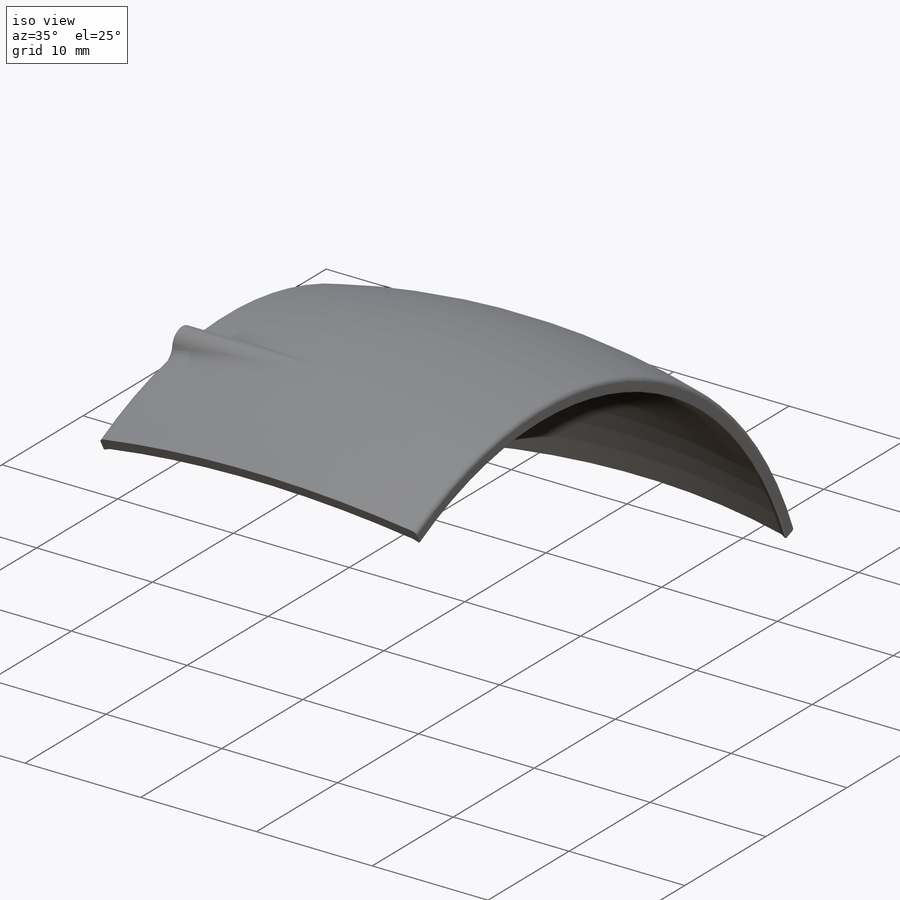
[diagram: iso view]
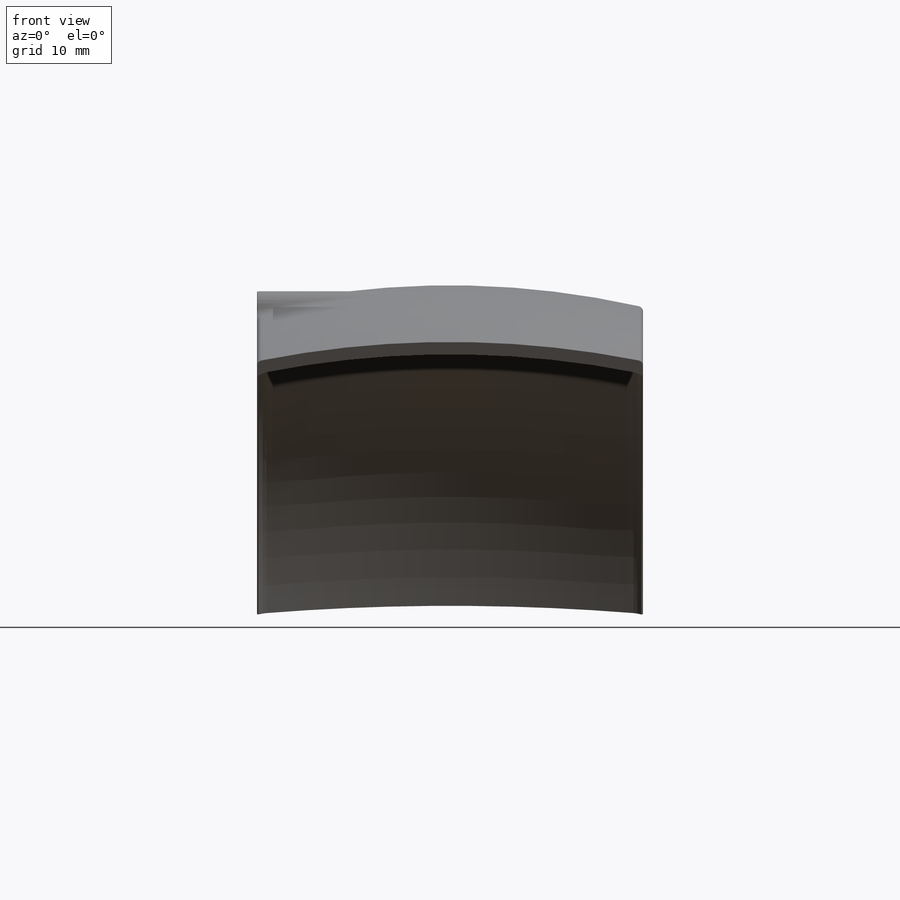
[diagram: front view]
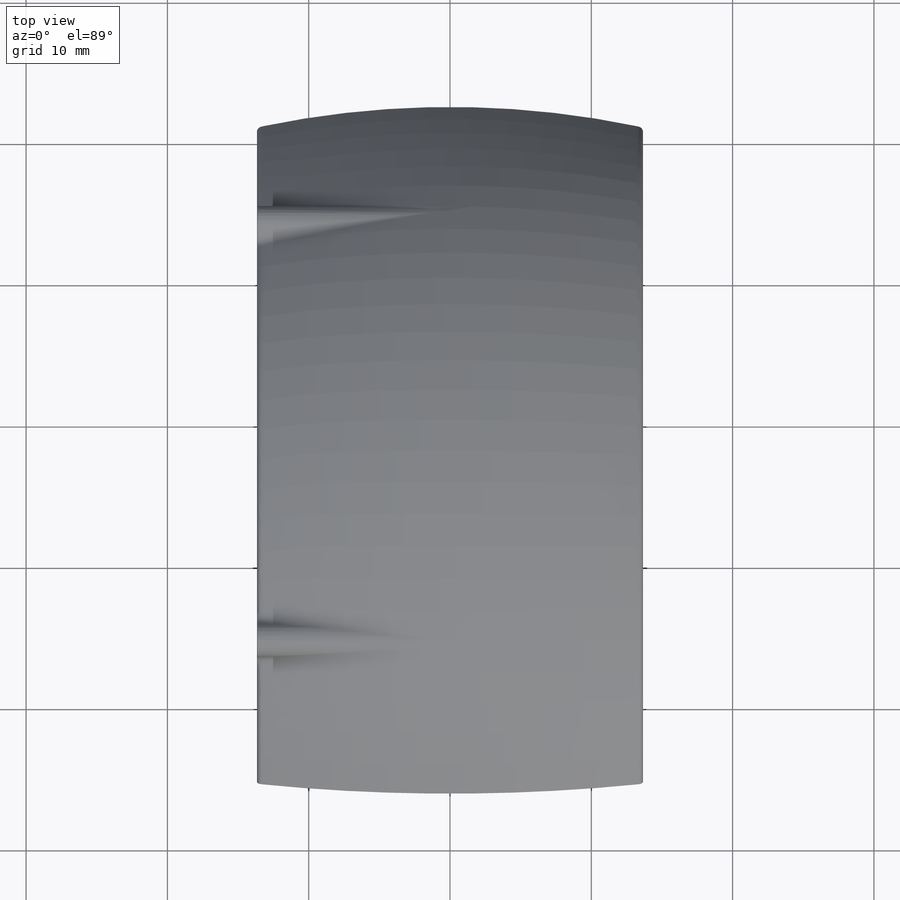
[diagram: top view]
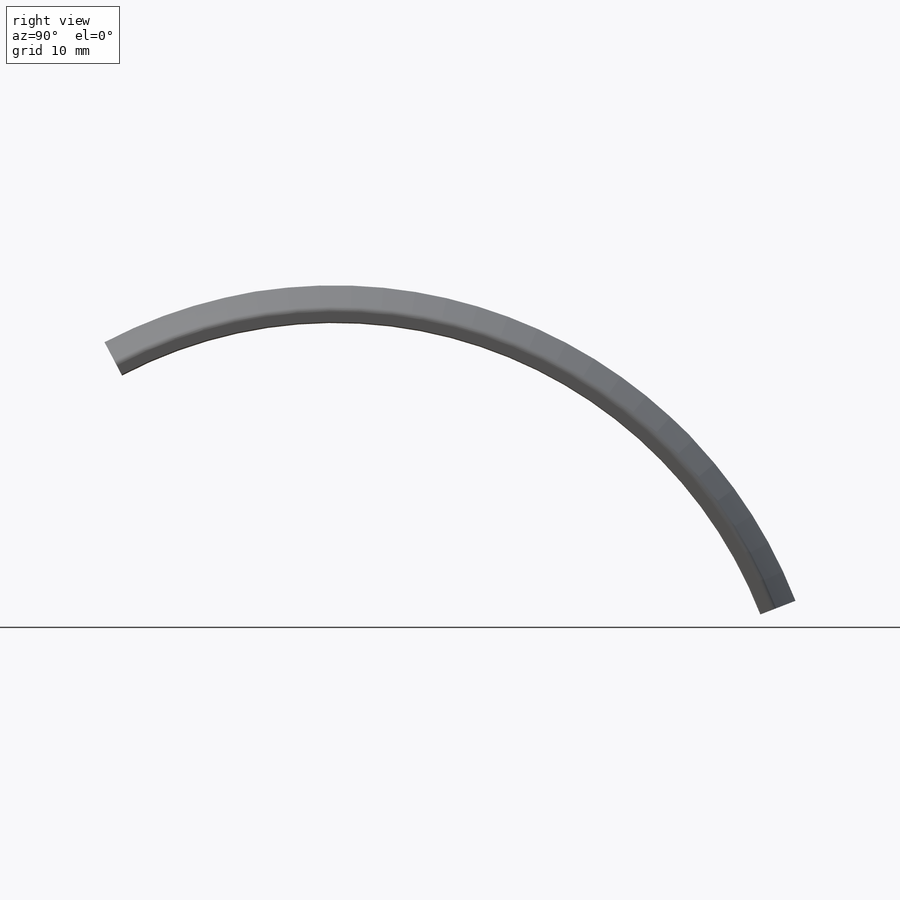
[diagram: right view]
SOLIDWORKS PART (.sldprt)
format: sldprt  version: not decoded by parser v0  size: 345,088 bytes
history: native  units: mm
features: sketch x6, fillet x4, sweep x2, material x1, mirror x1, extrude x1, pattern_circular x1 (+11 scaffold rows collapsed)
feature tree (27):
  scaffold x11  (default folders/planes/origin — collapsed)
  material  "Material <not specified>"
  sketch  "Sketch1"  dims[D1=35.0mm]
  sketch  "Sketch4"
  sketch  "Sketch2"  dims[D2=60.0mm D1=13.0mm D3=1.0mm D4=34.0mm D5=~30.408668mm]
  sweep  "Sweep1"
  sketch  "Sketch3"
  sweep  "Sweep2"
  sketch  "Sketch2<3>"
  fillet  "Fillet1"  Radius=0.4mm
  fillet  "Fillet2"  Radius=0.1mm
  mirror  "Mirror1"
  sketch  "3DSketch1"  dims[c1.D2=~0.835322mm c1.D3=1.0mm c2.D2=~1.01289mm c2.D3=1.3mm c2.D1=2.0mm]
  extrude  "Boss-Extrude1"  Depth=0.001mm
  fillet  "Fillet3"  Radius=0.8mm
  fillet  "Fillet4"  Radius=0.1mm
  pattern_circular  "CirPattern1"  Count=2 Angle=55deg
decode coverage: 9 of 15 modeling features carry decoded parameters
note: ~ marks probable driven/reference dimensions
note: suppression state not decoded; provenance and decode notes live in map.json
